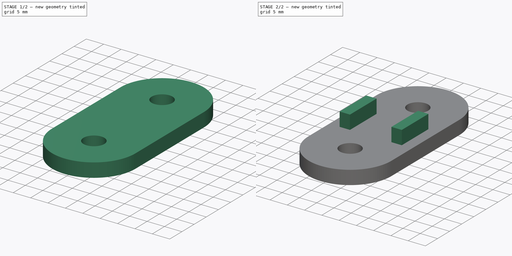
[diagram: build sequence overview — one tinted view per stage of 2, left to right]
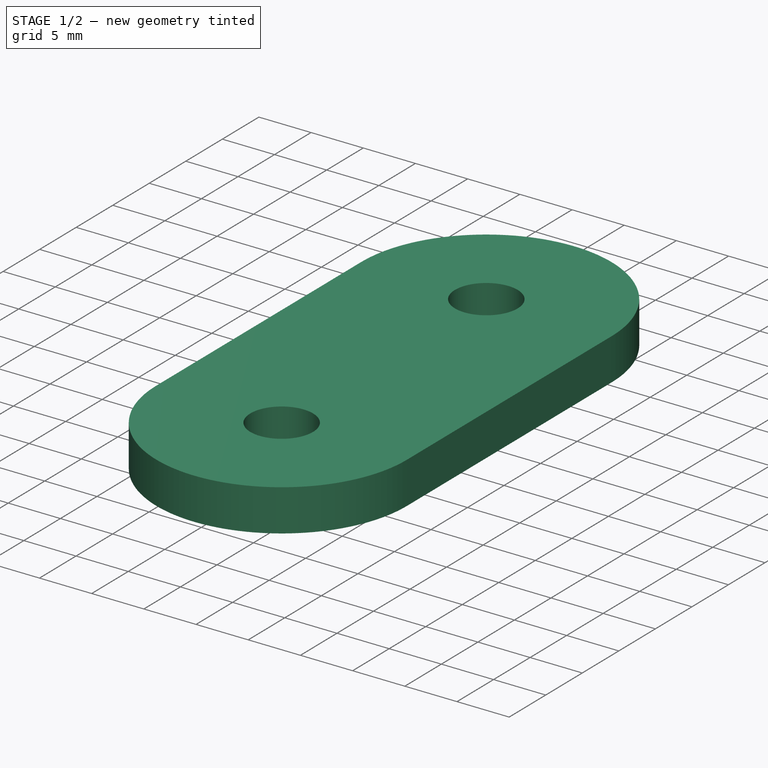
[diagram: stage 1 of 2 — iso view after this stage's code; geometry added in this stage tinted green]
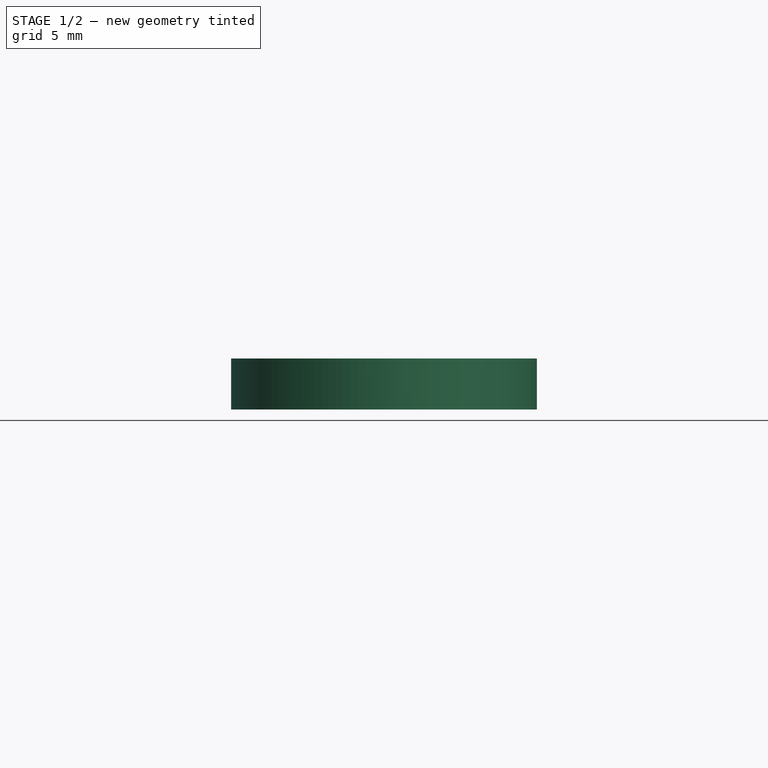
[diagram: stage 1 of 2 — front view after this stage's code; geometry added in this stage tinted green]
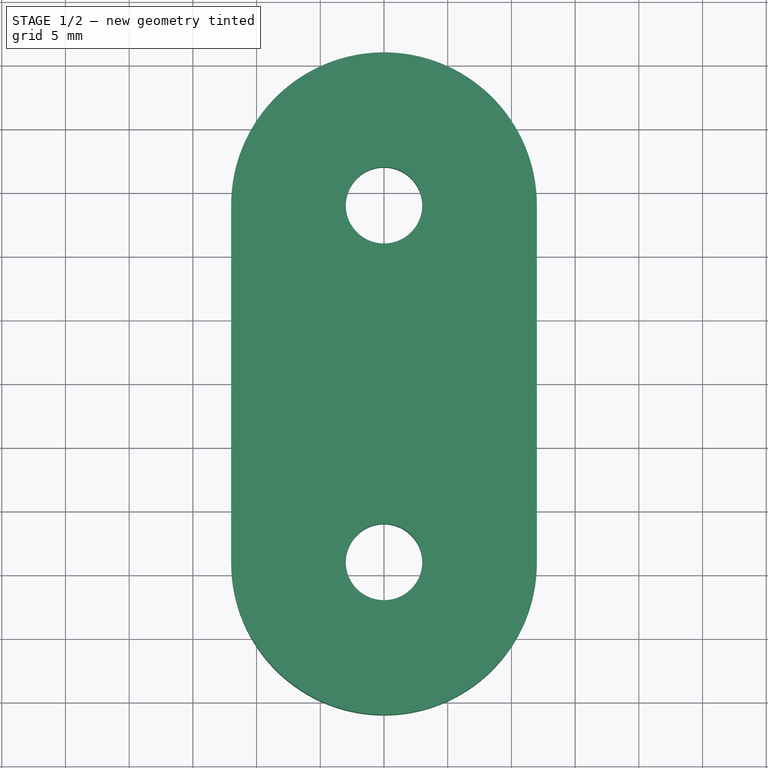
[diagram: stage 1 of 2 — top view after this stage's code; geometry added in this stage tinted green]
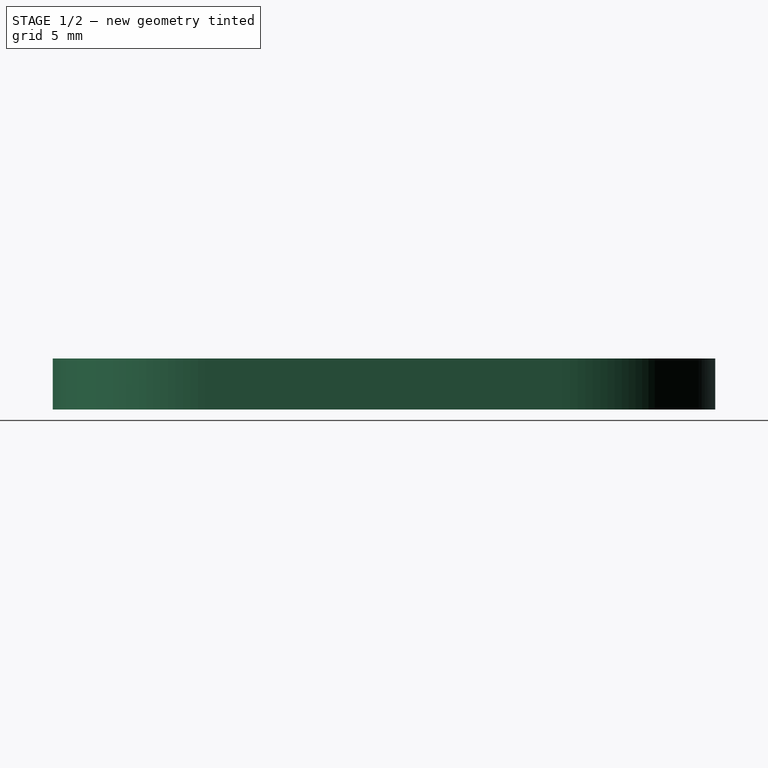
[diagram: stage 1 of 2 — right view after this stage's code; geometry added in this stage tinted green]
FCSTD DOCUMENT  (FreeCAD 0.20R29177 (Git))
Label: smallTableConnector
License: All rights reserved
LicenseURL: http://en.wikipedia.org/wiki/All_rights_reserved
objects: Sketcher::SketchObject×2, PartDesign::Pad×2, Spreadsheet::Sheet×1, PartDesign::Body×1
note: 7 computed .brp shape members not serialized (recipe doc carries the construction recipe); baked Part::Feature solids carry a one-line shape summary decoded from their .brp

FEATURE [Spreadsheet::Sheet] Spreadsheet
  cells = A2=screwR; B2(screwR)=3; A3=sideToScrew; B3(sideToScrew)=14; A4=thickness; B4(thickness)=4; A5=bottomSupportThickness; B5(bottomSupportThickness)==B4 + 4; A6=bottomSupportWidth; B6(bottomSupportWidth)=3; A7=bottomSupportToScrewDist; B7(bottomSupportToScrewDist)==B2 + 3; A8=beamHaflLen; B8(beamHaflLen)=5.5
FEATURE [Sketcher::SketchObject] Sketch
  FullyConstrained = true
  MapMode = 5
  Support = -> [XY_Plane]
  expr: Constraints[2] = Spreadsheet.sideToScrew
  expr: Constraints[3] = Spreadsheet.sideToScrew
  expr: Constraints[5] = Spreadsheet.screwR
  sketch-geometry (6):
    g0: Circle CenterX=0 CenterY=14 CenterZ=0 NormalX=0 NormalY=0 NormalZ=1 AngleXU=0 Radius=3
    g1: Circle CenterX=0 CenterY=-14 CenterZ=0 NormalX=0 NormalY=0 NormalZ=1 AngleXU=0 Radius=3
    g2: ArcOfCircle CenterX=0 CenterY=14 CenterZ=0 NormalX=0 NormalY=0 NormalZ=1 AngleXU=0 Radius=12 StartAngle=9.06e-14 EndAngle=3.14159
    g3: ArcOfCircle CenterX=0 CenterY=-14 CenterZ=0 NormalX=0 NormalY=0 NormalZ=1 AngleXU=0 Radius=12 StartAngle=3.14159 EndAngle=6.28319
    g4: LineSegment StartX=-12 StartY=14 StartZ=0 EndX=-12 EndY=-14 EndZ=0
    g5: LineSegment StartX=12 StartY=-14 StartZ=0 EndX=12 EndY=14 EndZ=0
  constraints (14):
    c: PointOnObject(g0,g-2)
    c: PointOnObject(g1,g-2)
    c: DistanceY(g-1,g0) = 14
    c: DistanceY(g1,g-1) = 14
    c: Equal(g0,g1)
    c: Radius(g0) = 3
    c: Tangent(g2,g4) = -1.5708
    c: Tangent(g4,g3) = -1.5708
    c: Tangent(g3,g5) = -1.5708
    c: Tangent(g5,g2) = -1.5708
    c: Equal(g2,g3)
    c: Coincident(g2,g0)
    c: Radius(g2) = 12
    c: Coincident(g3,g1)
FEATURE [PartDesign::Pad] Pad
  Direction = (0,0,1)
  Length = 4
  Length2 = 10
  Profile = -> Sketch
  ReferenceAxis = -> Sketch [N_Axis]
  Type = 0
  expr: Length = Spreadsheet.thickness
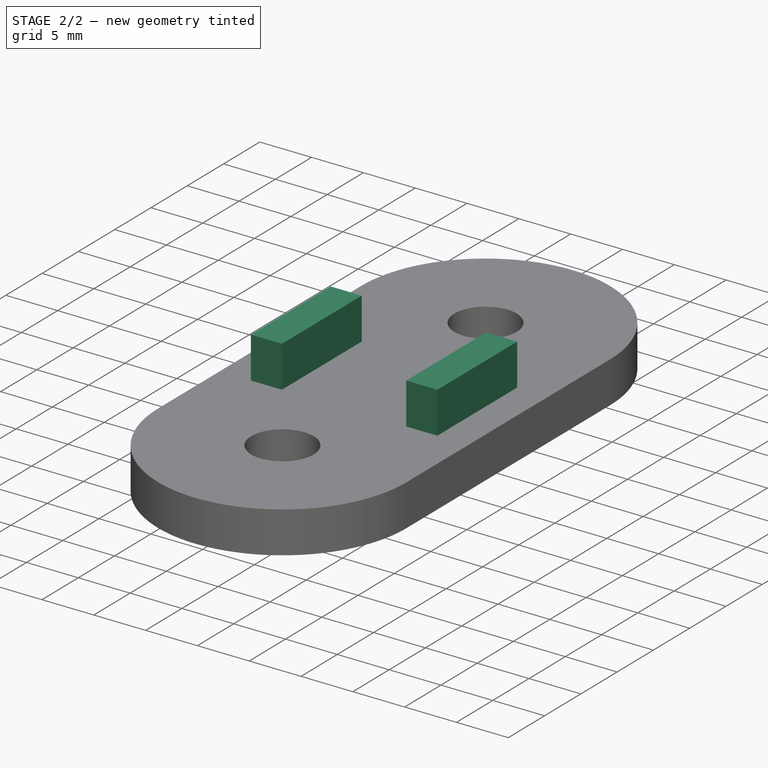
[diagram: stage 2 of 2 — iso view after this stage's code; geometry added in this stage tinted green]
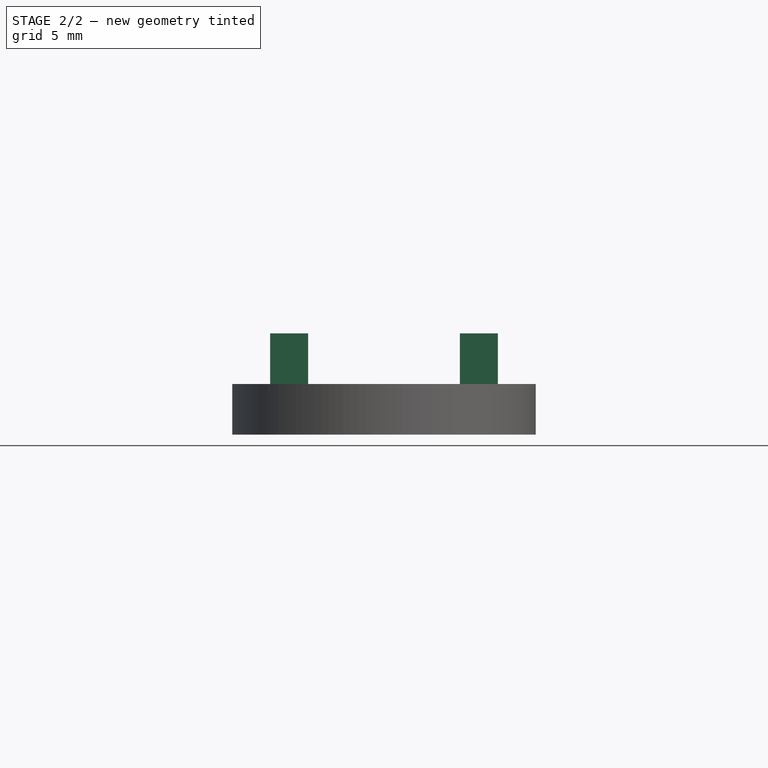
[diagram: stage 2 of 2 — front view after this stage's code; geometry added in this stage tinted green]
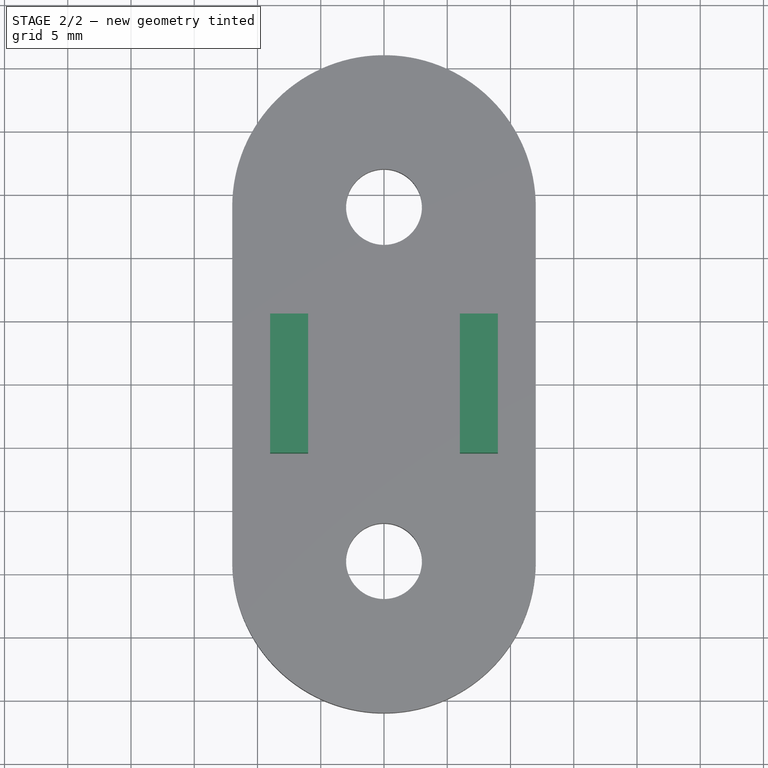
[diagram: stage 2 of 2 — top view after this stage's code; geometry added in this stage tinted green]
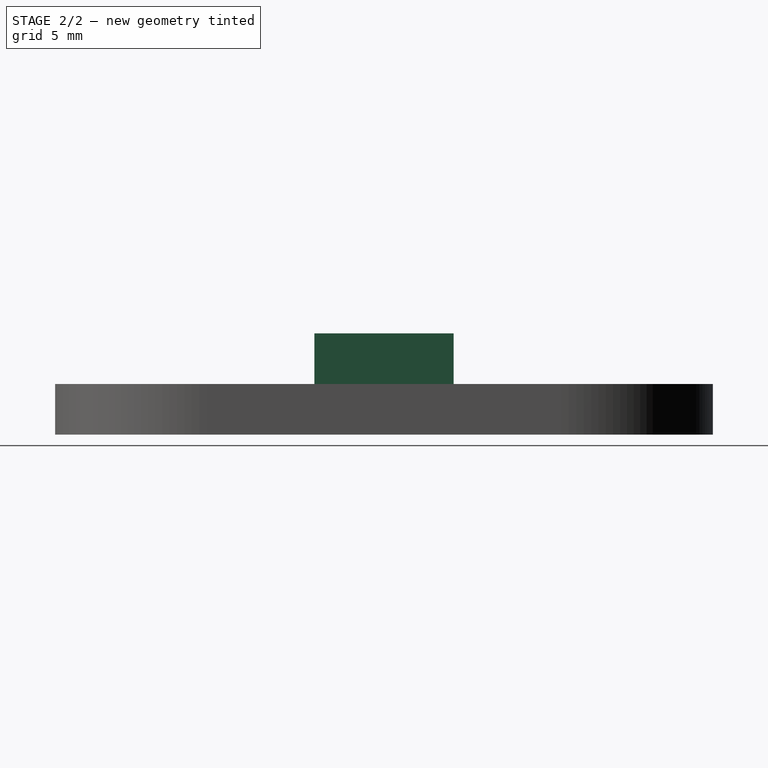
[diagram: stage 2 of 2 — right view after this stage's code; geometry added in this stage tinted green]
FEATURE [Sketcher::SketchObject] Sketch001
  ExternalGeometry = -> [Pad]
  FullyConstrained = true
  MapMode = 5
  Support = -> [XY_Plane]
  expr: Constraints[17] = Spreadsheet.bottomSupportToScrewDist
  expr: Constraints[18] = Spreadsheet.bottomSupportToScrewDist
  expr: Constraints[20] = Spreadsheet.bottomSupportWidth
  expr: Constraints[24] = Spreadsheet.beamHaflLen
  expr: Constraints[25] = Spreadsheet.beamHaflLen
  expr: Constraints[26] = Spreadsheet.beamHaflLen
  expr: Constraints[27] = Spreadsheet.beamHaflLen
  sketch-geometry (10):
    g0: LineSegment StartX=-9 StartY=5.5 StartZ=0 EndX=-6 EndY=5.5 EndZ=0
    g1: LineSegment StartX=-6 StartY=5.5 StartZ=0 EndX=-6 EndY=-5.5 EndZ=0
    g2: LineSegment StartX=-6 StartY=-5.5 StartZ=0 EndX=-9 EndY=-5.5 EndZ=0
    g3: LineSegment StartX=-9 StartY=-5.5 StartZ=0 EndX=-9 EndY=5.5 EndZ=0
    g4: LineSegment StartX=6 StartY=5.5 StartZ=0 EndX=9 EndY=5.5 EndZ=0
    g5: LineSegment StartX=9 StartY=-5.5 StartZ=0 EndX=6 EndY=-5.5 EndZ=0
    g6: LineSegment StartX=6 StartY=-5.5 StartZ=0 EndX=6 EndY=5.5 EndZ=0
    g7: LineSegment StartX=-12 StartY=14 StartZ=0 EndX=12 EndY=14 EndZ=0
    g8: LineSegment StartX=-12 StartY=-14 StartZ=0 EndX=12 EndY=-14 EndZ=0
    g9: LineSegment StartX=9 StartY=5.5 StartZ=0 EndX=9 EndY=-5.5 EndZ=0
  constraints (28):
    c: Coincident(g0,g1)
    c: Coincident(g1,g2)
    c: Coincident(g2,g3)
    c: Coincident(g3,g0)
    c: Horizontal(g0)
    c: Horizontal(g2)
    c: Vertical(g1)
    c: Vertical(g3)
    c: Coincident(g5,g6)
    c: Coincident(g6,g4)
    c: Horizontal(g4)
    c: Horizontal(g5)
    c: Vertical(g6)
    c: Coincident(g7,g-3)
    c: Coincident(g7,g-4)
    c: Coincident(g8,g-3)
    c: Coincident(g8,g-4)
    c: DistanceX(g-1,g4) = 6
    c: DistanceX(g0,g-1) = 6
    c: Equal(g4,g0)
    c: DistanceX(g4,g4) = 3
    c: Coincident(g9,g4)
    c: Vertical(g9)
    c: Coincident(g5,g9)
    c: DistanceY(g-1,g0) = 5.5
    c: DistanceY(g2,g-1) = 5.5
    c: DistanceY(g-1,g4) = 5.5
    c: DistanceY(g5,g-1) = 5.5
FEATURE [PartDesign::Pad] Pad001
  BaseFeature = -> Pad
  Direction = (0,0,1)
  Length = 8
  Length2 = 10
  Profile = -> Sketch001
  ReferenceAxis = -> Sketch001 [N_Axis]
  Type = 0
  expr: Length = Spreadsheet.bottomSupportThickness
FEATURE [PartDesign::Body] Body
  Group = -> [Sketch,Pad,Sketch001,Pad001]
  Origin = -> Origin
  Tip = -> Pad001
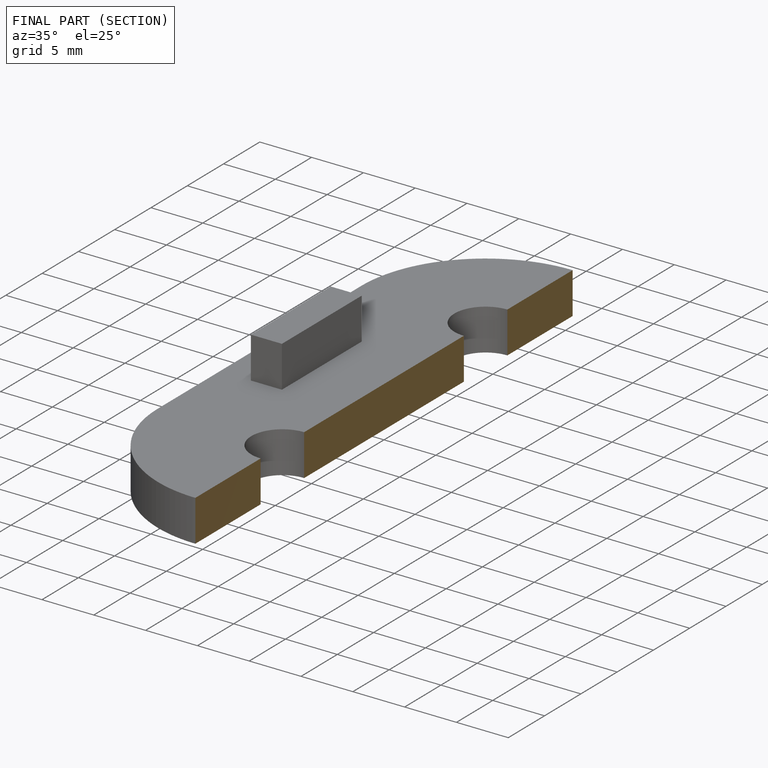
[diagram: finished part — half-section view (interior)]
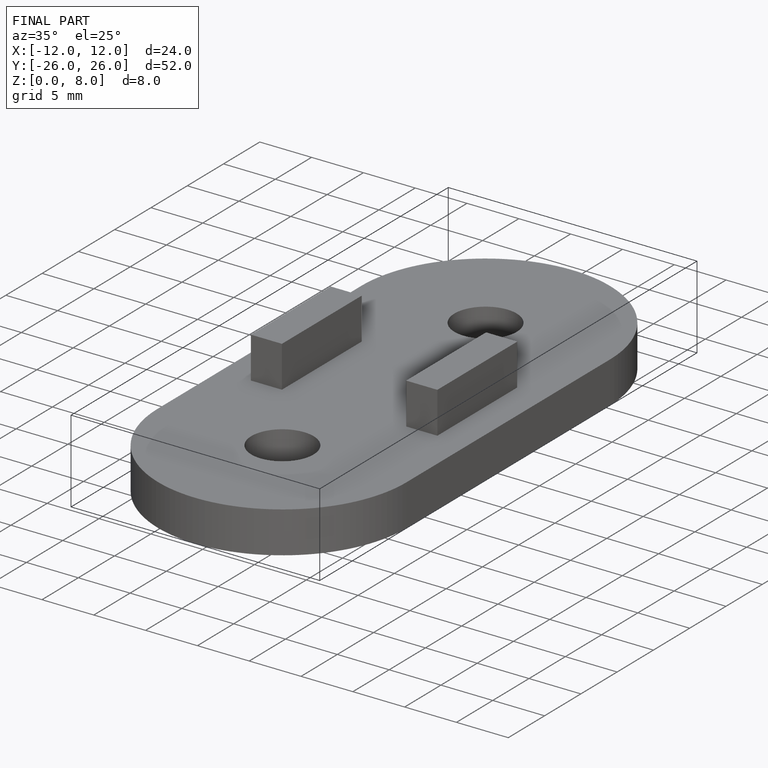
[diagram: finished part — iso view with bounding-box wireframe]
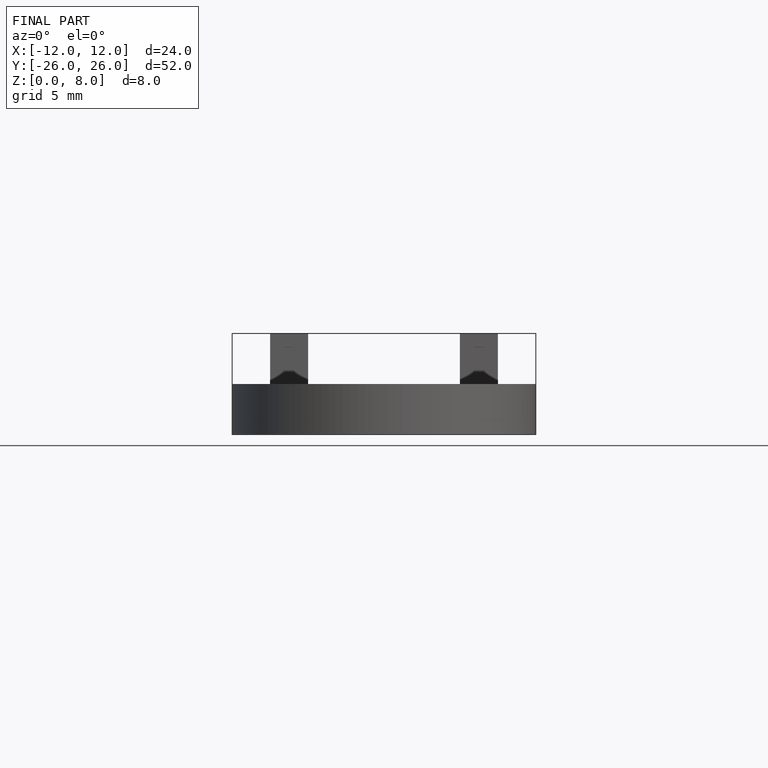
[diagram: finished part — front view with bounding-box wireframe]
